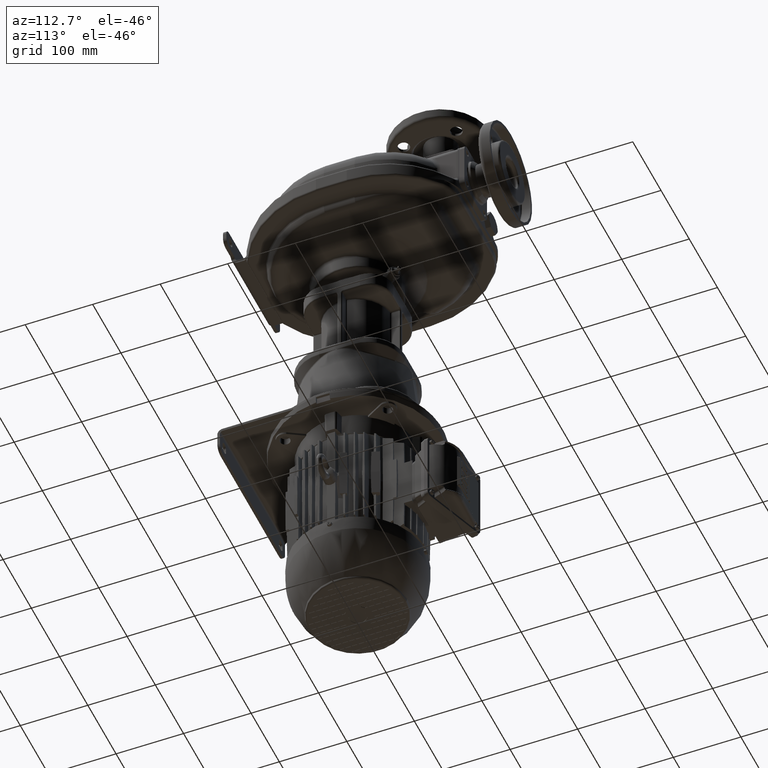
[diagram: clean part render]
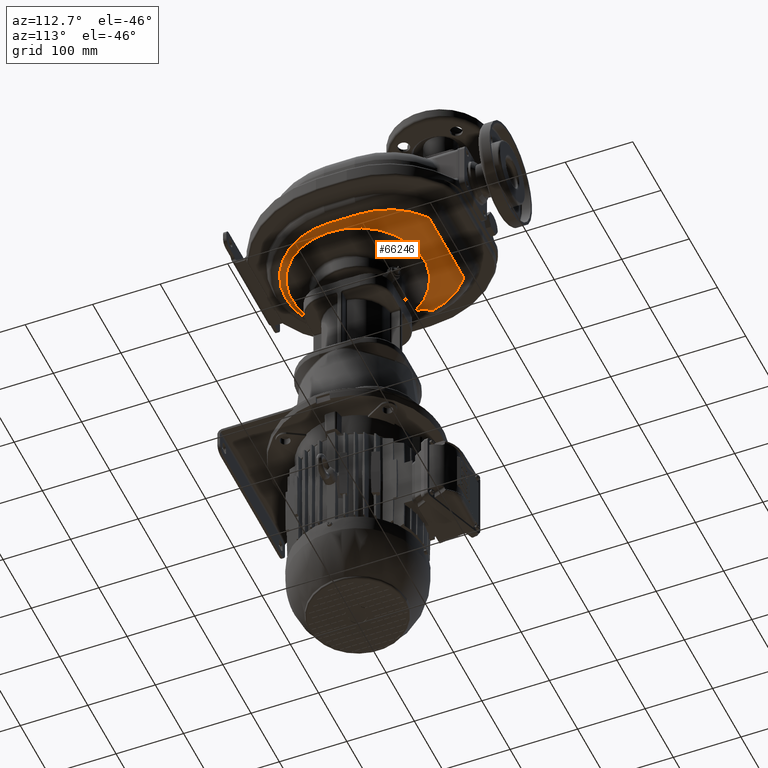
[diagram: same view with one face highlighted and labeled with its STEP entity id]
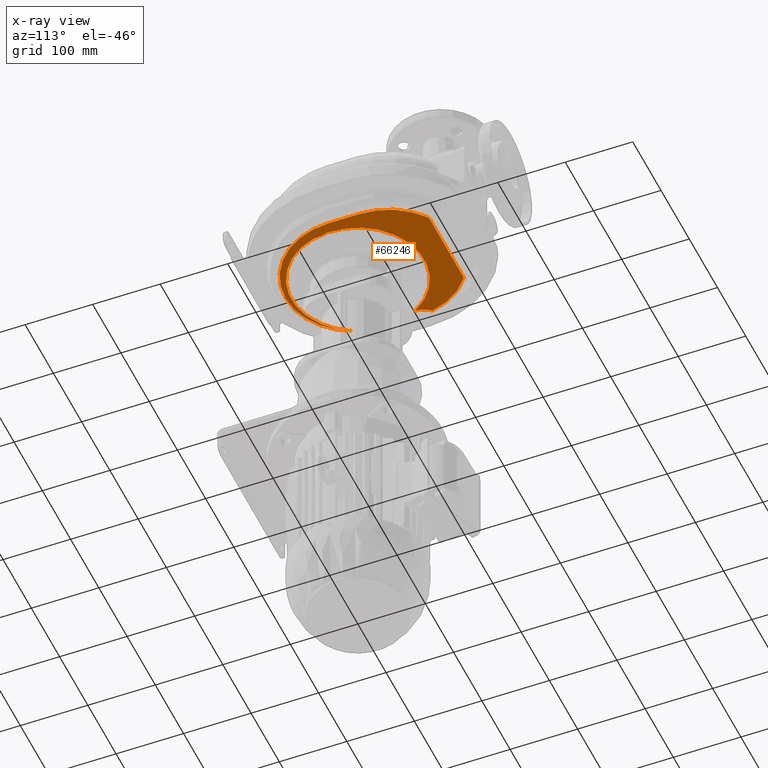
[diagram: x-ray of the same camera — body ghosted, the highlighted face saturated]
A machine part, auxiliary view. The second image highlights one B-rep face of the part: STEP entity #66246.
The next image is the same camera in x-ray: the body ghosted, the highlighted face saturated — about 1% of this face is hidden behind the body in this view.
In plain terms, the highlighted planar face has unit normal (0, 0, -1).
Its self-contained STEP definition (entity closure, byte-faithful):
#9500=CARTESIAN_POINT('',(0.E0,0.E0,-3.8E1));
#9501=DIRECTION('',(0.E0,0.E0,1.E0));
#9502=DIRECTION('',(-8.933307627668E-1,-4.493997644576E-1,0.E0));
#9503=AXIS2_PLACEMENT_3D('',#9500,#9501,#9502);
#9510=CARTESIAN_POINT('',(4.5E0,-4.5E0,-3.8E1));
#9511=DIRECTION('',(0.E0,0.E0,-1.E0));
#9512=DIRECTION('',(0.E0,-1.E0,0.E0));
#9513=AXIS2_PLACEMENT_3D('',#9510,#9511,#9512);
#9515=CARTESIAN_POINT('',(4.5E0,4.5E0,-3.8E1));
#9516=DIRECTION('',(0.E0,0.E0,-1.E0));
#9517=DIRECTION('',(1.E0,0.E0,0.E0));
#9518=AXIS2_PLACEMENT_3D('',#9515,#9516,#9517);
#9520=DIRECTION('',(0.E0,-1.E0,0.E0));
#9521=VECTOR('',#9520,4.55E1);
#9522=CARTESIAN_POINT('',(1.14E2,5.E1,-3.8E1));
#9523=LINE('',#9522,#9521);
#9524=CARTESIAN_POINT('',(9.E0,5.E1,-3.8E1));
#9525=DIRECTION('',(0.E0,0.E0,-1.E0));
#9526=DIRECTION('',(6.081600496393E-1,7.938144329897E-1,0.E0));
#9527=AXIS2_PLACEMENT_3D('',#9524,#9525,#9526);
#9529=CARTESIAN_POINT('',(6.799152481501E1,1.27E2,-3.8E1));
#9530=DIRECTION('',(0.E0,0.E0,-1.E0));
#9531=DIRECTION('',(0.E0,1.E0,0.E0));
#9532=AXIS2_PLACEMENT_3D('',#9529,#9530,#9531);
#9534=DIRECTION('',(1.E0,0.E0,0.E0));
#9535=VECTOR('',#9534,1.179830496300E2);
#9536=CARTESIAN_POINT('',(-4.999152481501E1,1.35E2,-3.8E1));
#9537=LINE('',#9536,#9535);
#9538=CARTESIAN_POINT('',(-4.999152481501E1,1.27E2,-3.8E1));
#9539=DIRECTION('',(0.E0,0.E0,-1.E0));
#9540=DIRECTION('',(-6.081600496393E-1,7.938144329897E-1,0.E0));
#9541=AXIS2_PLACEMENT_3D('',#9538,#9539,#9540);
#9543=CARTESIAN_POINT('',(9.E0,5.E1,-3.8E1));
#9544=DIRECTION('',(0.E0,0.E0,-1.E0));
#9545=DIRECTION('',(-9.782632054708E-1,2.073670678336E-1,0.E0));
#9546=AXIS2_PLACEMENT_3D('',#9543,#9544,#9545);
#9548=CARTESIAN_POINT('',(-9.273937336897E1,7.156617505470E1,-3.8E1));
#9549=DIRECTION('',(0.E0,0.E0,-1.E0));
#9550=DIRECTION('',(-7.493320947360E-1,-6.621943912467E-1,0.E0));
#9551=AXIS2_PLACEMENT_3D('',#9548,#9549,#9550);
#9553=CARTESIAN_POINT('',(-1.197153287795E2,4.772717696983E1,-3.8E1));
#9554=DIRECTION('',(0.E0,0.E0,1.E0));
#9555=DIRECTION('',(9.982481027583E-1,5.916692775090E-2,0.E0));
#9556=AXIS2_PLACEMENT_3D('',#9553,#9554,#9555);
#48257=CARTESIAN_POINT('',(-8.477664518268E1,4.979801943684E1,-3.8E1));
#48258=VERTEX_POINT('',#48257);
#48259=CARTESIAN_POINT('',(-8.783273447487E1,-4.418521317056E1,-3.8E1));
#48260=VERTEX_POINT('',#48259);
#48277=CARTESIAN_POINT('',(-9.348870546370E1,7.090398066345E1,-3.8E1));
#48278=CARTESIAN_POINT('',(-9.371763657444E1,7.177354212253E1,-3.8E1));
#48279=VERTEX_POINT('',#48277);
#48280=VERTEX_POINT('',#48278);
#48281=CARTESIAN_POINT('',(-5.485680521212E1,1.333505154639E2,-3.8E1));
#48282=VERTEX_POINT('',#48281);
#48283=CARTESIAN_POINT('',(-4.999152481501E1,1.35E2,-3.8E1));
#48284=VERTEX_POINT('',#48283);
#48285=CARTESIAN_POINT('',(6.799152481501E1,1.35E2,-3.8E1));
#48286=VERTEX_POINT('',#48285);
#48287=CARTESIAN_POINT('',(7.285680521212E1,1.333505154639E2,-3.8E1));
#48288=VERTEX_POINT('',#48287);
#48289=CARTESIAN_POINT('',(1.14E2,5.E1,-3.8E1));
#48290=VERTEX_POINT('',#48289);
#48291=CARTESIAN_POINT('',(1.14E2,4.5E0,-3.8E1));
#48292=VERTEX_POINT('',#48291);
#48293=CARTESIAN_POINT('',(4.500000000001E0,-1.05E2,-3.8E1));
#48294=VERTEX_POINT('',#48293);
#66218=CARTESIAN_POINT('',(0.E0,0.E0,-3.8E1));
#66219=DIRECTION('',(0.E0,0.E0,-1.E0));
#66220=DIRECTION('',(-1.E0,0.E0,0.E0));
#66221=AXIS2_PLACEMENT_3D('',#66218,#66219,#66220);
#66222=PLANE('',#66221);
#66223=ORIENTED_EDGE('',*,*,#66204,.F.);
#66225=ORIENTED_EDGE('',*,*,#66224,.F.);
#66227=ORIENTED_EDGE('',*,*,#66226,.F.);
#66229=ORIENTED_EDGE('',*,*,#66228,.F.);
#66231=ORIENTED_EDGE('',*,*,#66230,.F.);
#66233=ORIENTED_EDGE('',*,*,#66232,.F.);
#66235=ORIENTED_EDGE('',*,*,#66234,.F.);
#66237=ORIENTED_EDGE('',*,*,#66236,.F.);
#66239=ORIENTED_EDGE('',*,*,#66238,.F.);
#66241=ORIENTED_EDGE('',*,*,#66240,.F.);
#66243=ORIENTED_EDGE('',*,*,#66242,.F.);
#66244=EDGE_LOOP('',(#66223,#66225,#66227,#66229,#66231,#66233,#66235,#66237,
#66239,#66241,#66243));
#66245=FACE_OUTER_BOUND('',#66244,.F.);
#66246=ADVANCED_FACE('',(#66245),#66222,.T.);
#9504=CIRCLE('',#9503,9.832050807569E1);
#9514=CIRCLE('',#9513,1.005E2);
#9519=CIRCLE('',#9518,1.095E2);
#9528=CIRCLE('',#9527,1.05E2);
#9533=CIRCLE('',#9532,8.E0);
#9542=CIRCLE('',#9541,8.E0);
#9547=CIRCLE('',#9546,1.05E2);
#9552=CIRCLE('',#9551,1.E0);
#9557=CIRCLE('',#9556,3.5E1);
#66204=EDGE_CURVE('',#48260,#48258,#9504,.T.);
#66224=EDGE_CURVE('',#48294,#48260,#9514,.T.);
#66226=EDGE_CURVE('',#48292,#48294,#9519,.T.);
#66228=EDGE_CURVE('',#48290,#48292,#9523,.T.);
#66230=EDGE_CURVE('',#48288,#48290,#9528,.T.);
#66232=EDGE_CURVE('',#48286,#48288,#9533,.T.);
#66234=EDGE_CURVE('',#48284,#48286,#9537,.T.);
#66236=EDGE_CURVE('',#48282,#48284,#9542,.T.);
#66238=EDGE_CURVE('',#48280,#48282,#9547,.T.);
#66240=EDGE_CURVE('',#48279,#48280,#9552,.T.);
#66242=EDGE_CURVE('',#48258,#48279,#9557,.T.);